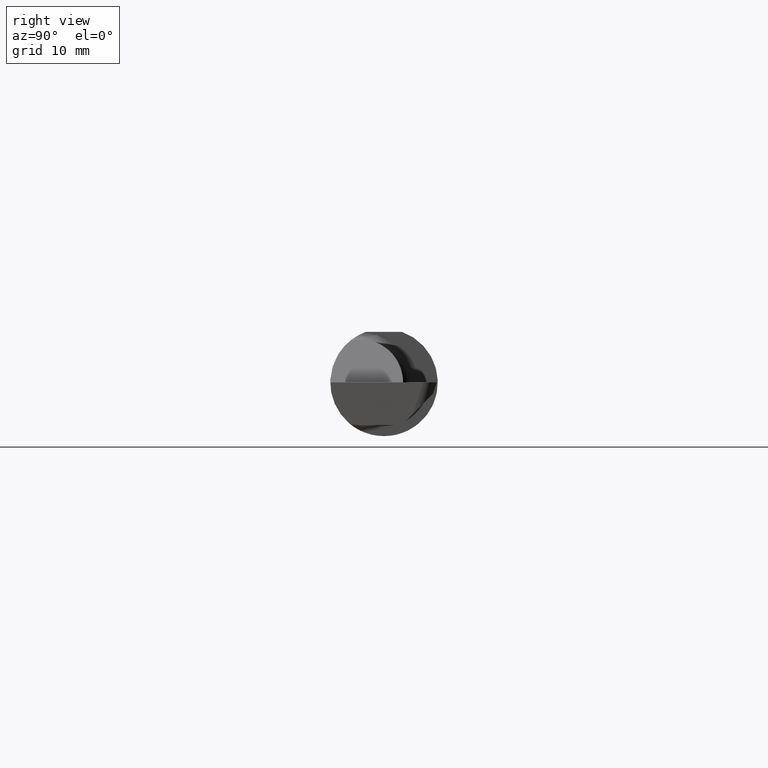
[diagram: clean part render]
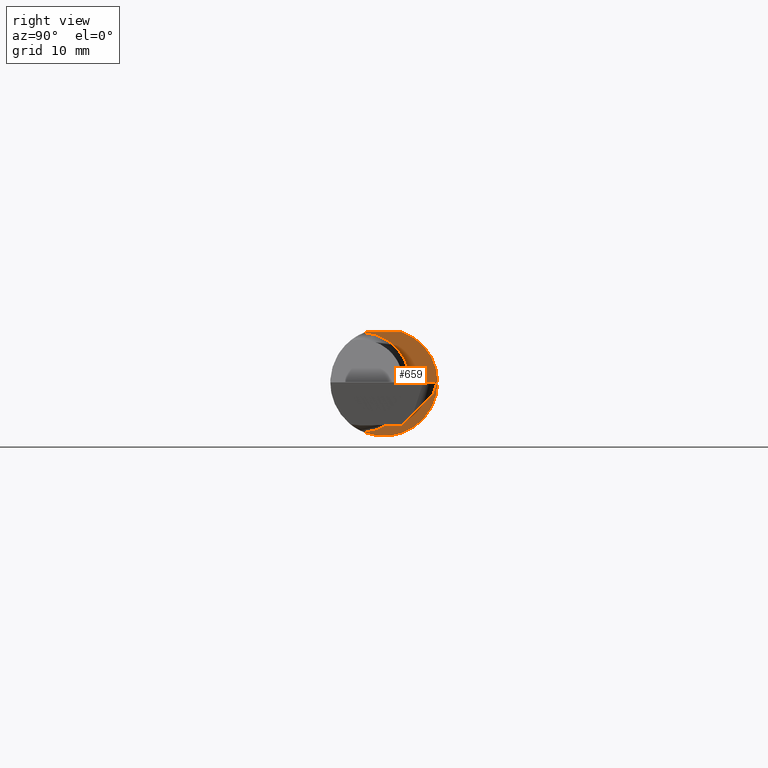
[diagram: same view with one face highlighted and labeled with its STEP entity id]
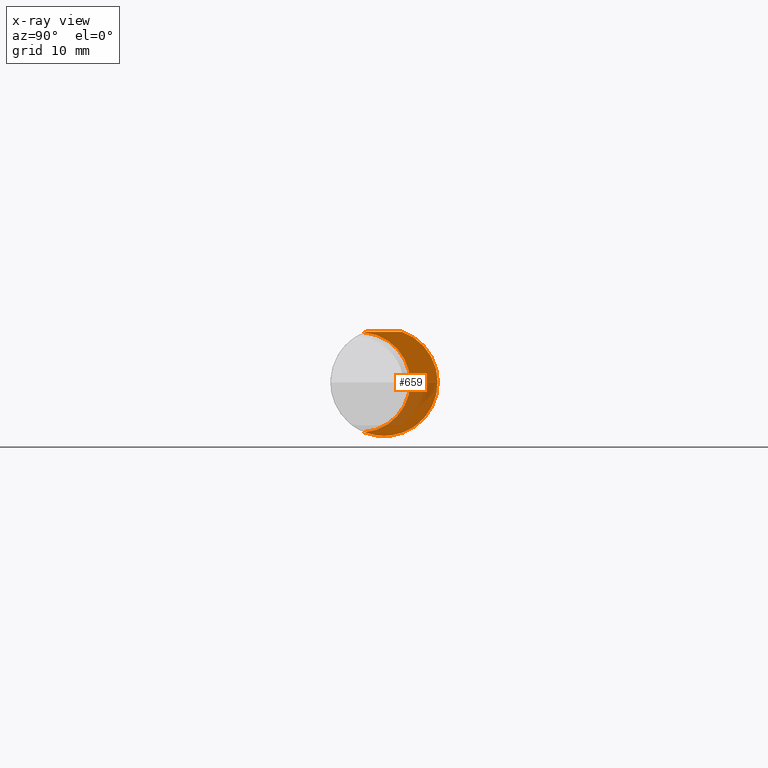
[diagram: x-ray of the same camera — body ghosted, the highlighted face saturated]
A machine part, right view. The second image highlights one B-rep face of the part: STEP entity #659.
The next image is the same camera in x-ray: the body ghosted, the highlighted face saturated — about 28% of this face is hidden behind the body in this view.
In plain terms, the highlighted planar face has unit normal (1, 0, 0).
Its self-contained STEP definition (entity closure, byte-faithful):
#16 = EDGE_LOOP ( 'NONE', ( #609, #96, #280, #514 ) ) ;
#56 = DIRECTION ( 'NONE',  ( 0.000000000000000000, -1.000000000000000000, 0.000000000000000000 ) ) ;
#96 = ORIENTED_EDGE ( 'NONE', *, *, #419, .F. ) ;
#106 = CIRCLE ( 'NONE', #552, 0.1749999999999999889 ) ;
#127 = AXIS2_PLACEMENT_3D ( 'NONE', #169, #271, #165 ) ;
#165 = DIRECTION ( 'NONE',  ( -8.453855317547640226E-17, 1.000000000000000000, 0.000000000000000000 ) ) ;
#169 = CARTESIAN_POINT ( 'NONE',  ( 1.199999999999999956, 0.1873499999999998222, 0.000000000000000000 ) ) ;
#206 = VERTEX_POINT ( 'NONE', #585 ) ;
#214 = CIRCLE ( 'NONE', #707, 0.1873499999999999888 ) ;
#218 = CARTESIAN_POINT ( 'NONE',  ( 1.199999999999999956, -0.06851976604679066440, 0.1743704796142198643 ) ) ;
#230 = EDGE_CURVE ( 'NONE', #680, #682, #214, .T. ) ;
#248 = LINE ( 'NONE', #410, #257 ) ;
#257 = VECTOR ( 'NONE', #298, 39.37007874015748143 ) ;
#271 = DIRECTION ( 'NONE',  ( 1.000000000000000000, 8.453855317547640226E-17, 0.000000000000000000 ) ) ;
#280 = ORIENTED_EDGE ( 'NONE', *, *, #230, .T. ) ;
#298 = DIRECTION ( 'NONE',  ( -8.453855317547640226E-17, 1.000000000000000000, 0.000000000000000000 ) ) ;
#329 = DIRECTION ( 'NONE',  ( 0.000000000000000000, 1.000000000000000000, 0.000000000000000000 ) ) ;
#330 = CARTESIAN_POINT ( 'NONE',  ( 1.199999999999999956, -0.08335000000000007681, 0.000000000000000000 ) ) ;
#369 = DIRECTION ( 'NONE',  ( 1.000000000000000000, 8.453855317547640226E-17, 0.000000000000000000 ) ) ;
#376 = FACE_OUTER_BOUND ( 'NONE', #16, .T. ) ;
#385 = AXIS2_PLACEMENT_3D ( 'NONE', #497, #601, #329 ) ;
#389 = EDGE_CURVE ( 'NONE', #682, #399, #106, .T. ) ;
#399 = VERTEX_POINT ( 'NONE', #670 ) ;
#410 = CARTESIAN_POINT ( 'NONE',  ( 1.199999999999999956, 0.1873499999999997112, 0.1763499999999999235 ) ) ;
#419 = EDGE_CURVE ( 'NONE', #680, #206, #248, .T. ) ;
#497 = CARTESIAN_POINT ( 'NONE',  ( 1.199999999999999956, 0.000000000000000000, 0.000000000000000000 ) ) ;
#514 = ORIENTED_EDGE ( 'NONE', *, *, #389, .T. ) ;
#529 = CIRCLE ( 'NONE', #385, 0.1873499999999999888 ) ;
#547 = DIRECTION ( 'NONE',  ( -1.000000000000000000, -8.453855317547640226E-17, -0.000000000000000000 ) ) ;
#552 = AXIS2_PLACEMENT_3D ( 'NONE', #330, #547, #56 ) ;
#581 = DIRECTION ( 'NONE',  ( 0.000000000000000000, 1.000000000000000000, 0.000000000000000000 ) ) ;
#585 = CARTESIAN_POINT ( 'NONE',  ( 1.199999999999999956, 0.06325108694718235836, 0.1763499999999999235 ) ) ;
#589 = PLANE ( 'NONE',  #127 ) ;
#593 = CARTESIAN_POINT ( 'NONE',  ( 1.199999999999999956, -0.06325108694718287183, 0.1763499999999999235 ) ) ;
#601 = DIRECTION ( 'NONE',  ( 1.000000000000000000, 8.453855317547640226E-17, 0.000000000000000000 ) ) ;
#609 = ORIENTED_EDGE ( 'NONE', *, *, #667, .T. ) ;
#659 = ADVANCED_FACE ( 'NONE', ( #376 ), #589, .T. ) ;
#667 = EDGE_CURVE ( 'NONE', #399, #206, #529, .T. ) ;
#670 = CARTESIAN_POINT ( 'NONE',  ( 1.199999999999999956, -0.06851976604679066440, -0.1743704796142198643 ) ) ;
#680 = VERTEX_POINT ( 'NONE', #593 ) ;
#682 = VERTEX_POINT ( 'NONE', #218 ) ;
#688 = CARTESIAN_POINT ( 'NONE',  ( 1.199999999999999956, 0.000000000000000000, 0.000000000000000000 ) ) ;
#707 = AXIS2_PLACEMENT_3D ( 'NONE', #688, #369, #581 ) ;